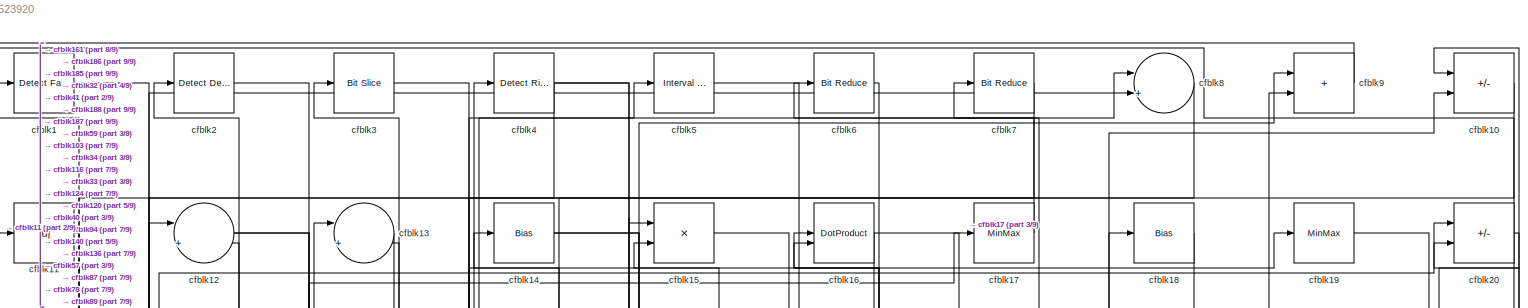
[diagram: root canvas - part 1/9, full width, top band]
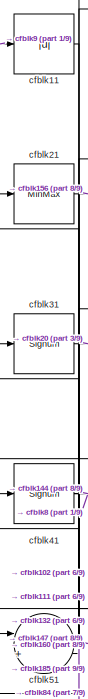
[diagram: root canvas - part 2/9, top left region]
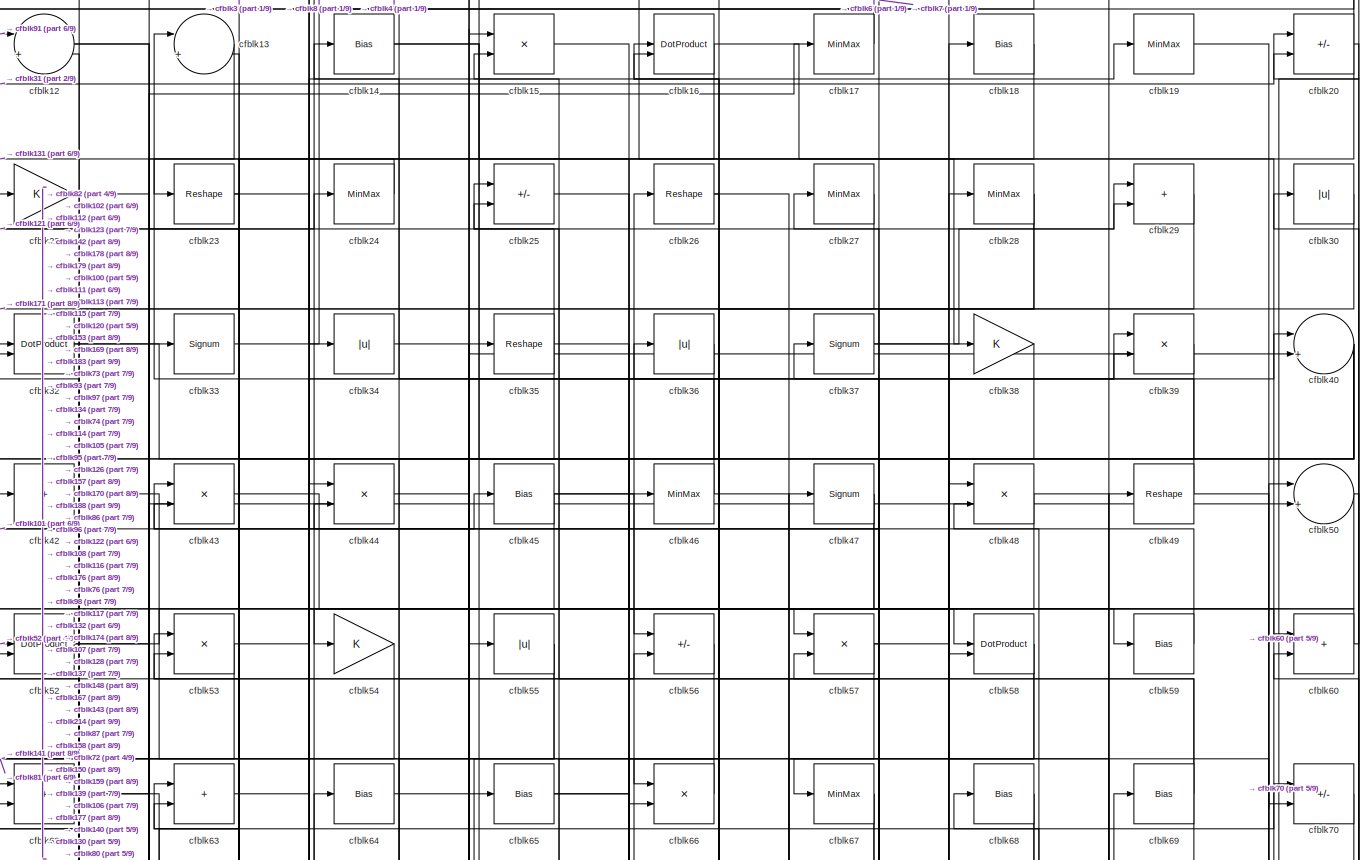
[diagram: root canvas - part 3/9, full width, top band]
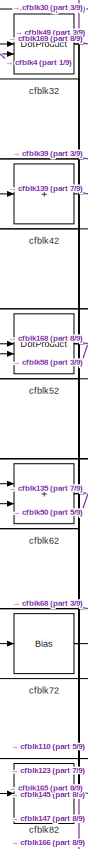
[diagram: root canvas - part 4/9, top left region]
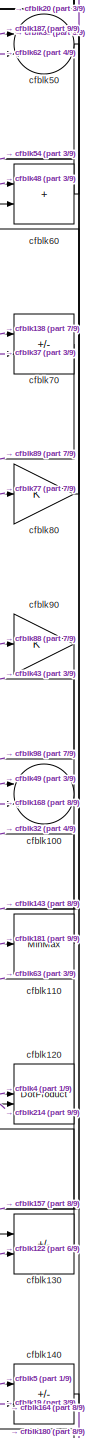
[diagram: root canvas - part 5/9, middle right region]
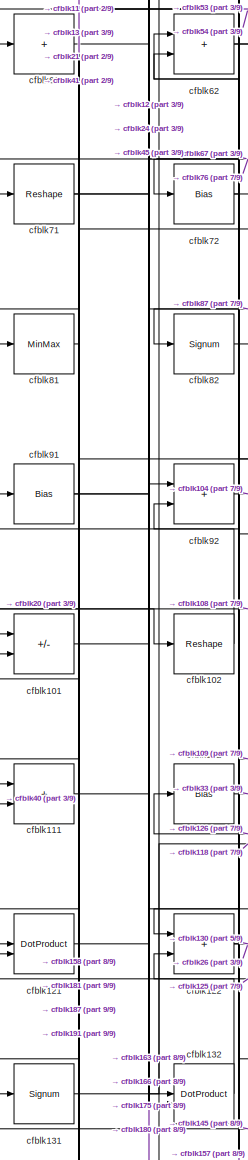
[diagram: root canvas - part 6/9, middle left region]
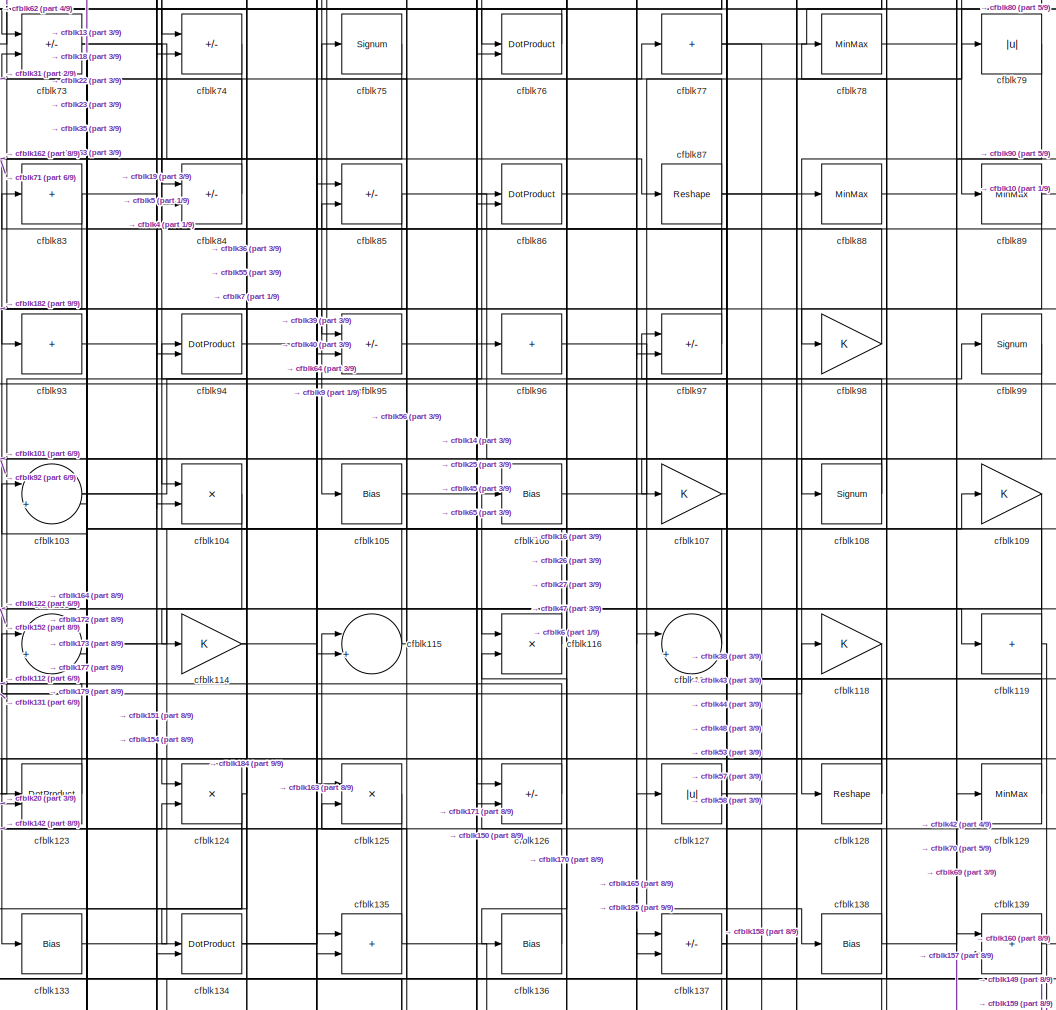
[diagram: root canvas - part 7/9, central region]
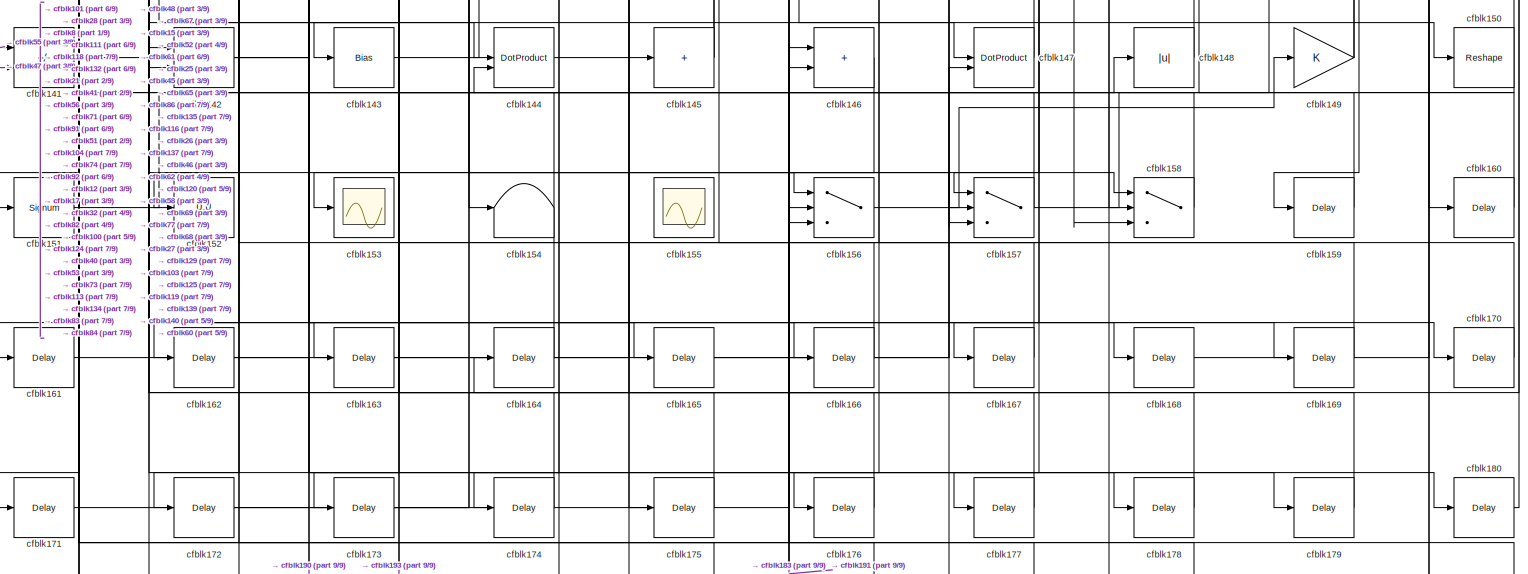
[diagram: root canvas - part 8/9, full width, bottom band]
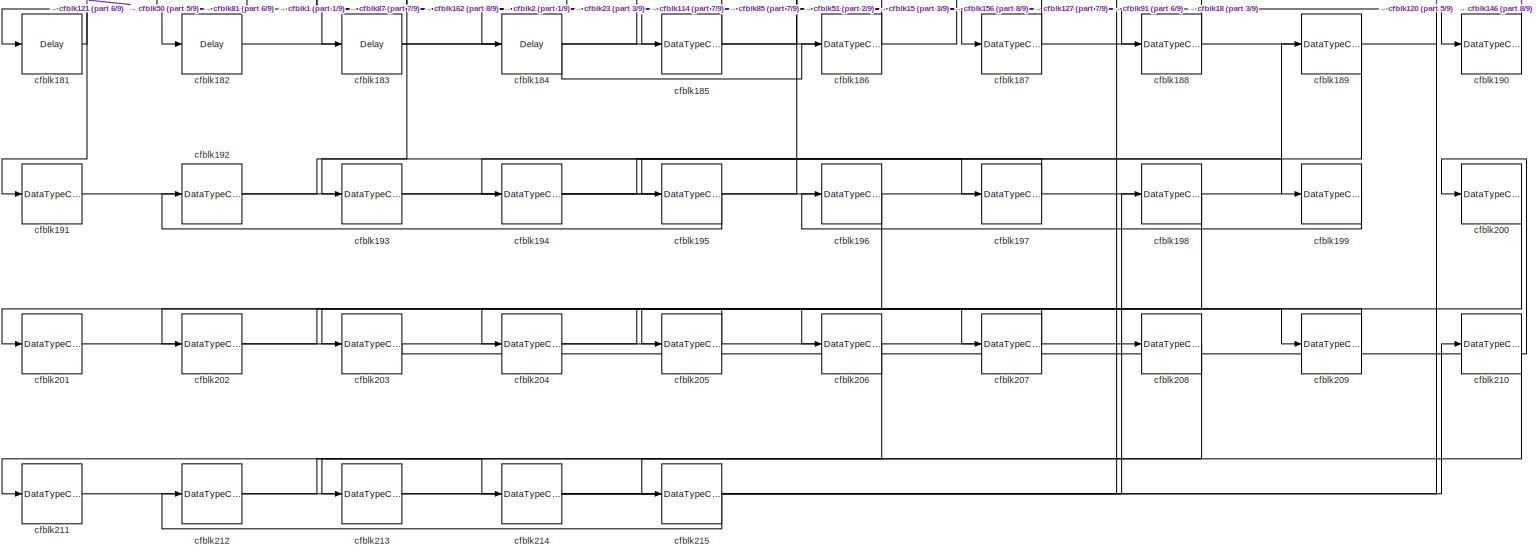
[diagram: root canvas - part 9/9, full width, bottom band]
MODEL slx_3f05ec523920
KIND model
CONFIG AbsTol = auto
CONFIG EnableMultiTasking = off
CONFIG FixedStep = auto
CONFIG MaxStep = auto
CONFIG MinStep = auto
CONFIG RelTol = 1e-3
CONFIG SampleTimeConstraint = Unconstrained
CONFIG SolverName = VariableStepAuto
CONFIG StartTime = 0.0
CONFIG StopTime = 10.0
BLOCK [Reference] cfblk1  REF=hdlsllib/Logic and Bit
Operations/Detect Fall
Negative
  SourceBlock = hdlsllib/Logic and Bit\nOperations/Detect Fall\nNegative
  SourceType = Detect Fall Negative
BLOCK [Sum] cfblk10
  IconShape = rectangular
  Inputs = +-
BLOCK [Sum] cfblk100
  Inputs = |++
BLOCK [Sum] cfblk101
  IconShape = rectangular
  Inputs = +-
BLOCK [Reshape] cfblk102
BLOCK [Sum] cfblk103
  Inputs = |++
BLOCK [Product] cfblk104
  Inputs = */
  RndMeth = Zero
  SaturateOnIntegerOverflow = on
BLOCK [Bias] cfblk105
  Bias = 0.0
  SaturateOnIntegerOverflow = off
BLOCK [Bias] cfblk106
  Bias = 0.0
  SaturateOnIntegerOverflow = off
BLOCK [Gain] cfblk107
BLOCK [Signum] cfblk108
BLOCK [Gain] cfblk109
BLOCK [Abs] cfblk11
  SaturateOnIntegerOverflow = off
BLOCK [MinMax] cfblk110
BLOCK [Sum] cfblk111
  IconShape = rectangular
BLOCK [Bias] cfblk112
  Bias = 0.0
  SaturateOnIntegerOverflow = off
BLOCK [Sum] cfblk113
  Inputs = |++
BLOCK [Gain] cfblk114
BLOCK [Sum] cfblk115
  Inputs = |++
BLOCK [Product] cfblk116
  Inputs = */
  RndMeth = Zero
  SaturateOnIntegerOverflow = on
BLOCK [Sum] cfblk117
  Inputs = |++
BLOCK [Gain] cfblk118
BLOCK [Sum] cfblk119
  IconShape = rectangular
  Inputs = +
BLOCK [Sum] cfblk12
  Inputs = |++
BLOCK [DotProduct] cfblk120
  OutDataTypeStr = Inherit: Inherit via internal rule
BLOCK [DotProduct] cfblk121
  OutDataTypeStr = Inherit: Inherit via internal rule
BLOCK [Sum] cfblk122
  IconShape = rectangular
BLOCK [DotProduct] cfblk123
  OutDataTypeStr = Inherit: Inherit via internal rule
BLOCK [Product] cfblk124
  Inputs = */
  RndMeth = Zero
  SaturateOnIntegerOverflow = on
BLOCK [Product] cfblk125
  Inputs = */
  RndMeth = Zero
  SaturateOnIntegerOverflow = on
BLOCK [Sum] cfblk126
  IconShape = rectangular
  Inputs = +-
BLOCK [Abs] cfblk127
  SaturateOnIntegerOverflow = off
BLOCK [Reshape] cfblk128
BLOCK [MinMax] cfblk129
BLOCK [Sum] cfblk13
  Inputs = |++
BLOCK [Sum] cfblk130
  IconShape = rectangular
  Inputs = +-
BLOCK [Signum] cfblk131
BLOCK [DotProduct] cfblk132
  OutDataTypeStr = Inherit: Inherit via internal rule
BLOCK [Bias] cfblk133
  Bias = 0.0
  SaturateOnIntegerOverflow = off
BLOCK [DotProduct] cfblk134
  OutDataTypeStr = Inherit: Inherit via internal rule
BLOCK [Sum] cfblk135
  IconShape = rectangular
BLOCK [Bias] cfblk136
  Bias = 0.0
  SaturateOnIntegerOverflow = off
BLOCK [Sum] cfblk137
  IconShape = rectangular
  Inputs = +-
BLOCK [Bias] cfblk138
  Bias = 0.0
  SaturateOnIntegerOverflow = off
BLOCK [Sum] cfblk139
  IconShape = rectangular
BLOCK [Bias] cfblk14
  Bias = 0.0
  SaturateOnIntegerOverflow = off
BLOCK [Sum] cfblk140
  IconShape = rectangular
  Inputs = +-
BLOCK [Sum] cfblk141
  IconShape = rectangular
  Inputs = +-
BLOCK [Sum] cfblk142
  IconShape = rectangular
BLOCK [Bias] cfblk143
  Bias = 0.0
  SaturateOnIntegerOverflow = off
BLOCK [DotProduct] cfblk144
  OutDataTypeStr = Inherit: Inherit via internal rule
BLOCK [Sum] cfblk145
  IconShape = rectangular
  Inputs = +
BLOCK [Sum] cfblk146
  IconShape = rectangular
BLOCK [DotProduct] cfblk147
  OutDataTypeStr = Inherit: Inherit via internal rule
BLOCK [Abs] cfblk148
  SaturateOnIntegerOverflow = off
BLOCK [Gain] cfblk149
BLOCK [Product] cfblk15
  Inputs = */
  RndMeth = Zero
  SaturateOnIntegerOverflow = on
BLOCK [Reshape] cfblk150
BLOCK [Signum] cfblk151
BLOCK [Display] cfblk152
  Decimation = 1
BLOCK [Scope] cfblk153
  Floating = off
  NumInputPorts = 1
  ScopeSpecificationString = Simulink.scopes.TimeScopeBlockCfg('CurrentConfiguration', extmgr.ConfigurationSet(extmgr.Configuration('Core','General UI',true),extmgr.Configuration('Core','Source UI',true),extmgr.Configuration('Sources','WiredSimulink',true,'DataLoggingVariableName','ScopeData2','DataLoggingSaveFormat','Array','DataLoggingLimitDataPoints',true,'DataLoggingDecimation','1'),extmgr.Configuration('Visuals','Time Do...<+868ch>
BLOCK [Terminator] cfblk154
BLOCK [Scope] cfblk155
  Floating = on
  NumInputPorts = 1
  ScopeSpecificationString = Simulink.scopes.TimeScopeBlockCfg('CurrentConfiguration', extmgr.ConfigurationSet(extmgr.Configuration('Core','General UI',true,'FigureColor',[0.156862745098039 0.156862745098039 0.156862745098039]),extmgr.Configuration('Core','Source UI',true),extmgr.Configuration('Sources','WiredSimulink',true,'DataLoggingVariableName','ScopeData1','DataLoggingSaveFormat','StructureWithTime','DataLoggingLimitDat...<+2713ch>
BLOCK [Switch] cfblk156
  InputSameDT = off
  SaturateOnIntegerOverflow = off
BLOCK [Switch] cfblk157
  InputSameDT = off
  SaturateOnIntegerOverflow = off
BLOCK [Switch] cfblk158
  InputSameDT = off
  SaturateOnIntegerOverflow = off
BLOCK [Delay] cfblk159
  InputPortMap = u0
  SampleTime = 1
BLOCK [DotProduct] cfblk16
  OutDataTypeStr = Inherit: Inherit via internal rule
BLOCK [Delay] cfblk160
  InputPortMap = u0
  SampleTime = 1
BLOCK [Delay] cfblk161
  InputPortMap = u0
  SampleTime = 1
BLOCK [Delay] cfblk162
  InputPortMap = u0
  SampleTime = 1
BLOCK [Delay] cfblk163
  InputPortMap = u0
  SampleTime = 1
BLOCK [Delay] cfblk164
  InputPortMap = u0
  SampleTime = 1
BLOCK [Delay] cfblk165
  InputPortMap = u0
  SampleTime = 1
BLOCK [Delay] cfblk166
  InputPortMap = u0
  SampleTime = 1
BLOCK [Delay] cfblk167
  InputPortMap = u0
  SampleTime = 1
BLOCK [Delay] cfblk168
  InputPortMap = u0
  SampleTime = 1
BLOCK [Delay] cfblk169
  InputPortMap = u0
  SampleTime = 1
BLOCK [MinMax] cfblk17
BLOCK [Delay] cfblk170
  InputPortMap = u0
  SampleTime = 1
BLOCK [Delay] cfblk171
  InputPortMap = u0
  SampleTime = 1
BLOCK [Delay] cfblk172
  InputPortMap = u0
  SampleTime = 1
BLOCK [Delay] cfblk173
  InputPortMap = u0
  SampleTime = 1
BLOCK [Delay] cfblk174
  InputPortMap = u0
  SampleTime = 1
BLOCK [Delay] cfblk175
  InputPortMap = u0
  SampleTime = 1
BLOCK [Delay] cfblk176
  InputPortMap = u0
  SampleTime = 1
BLOCK [Delay] cfblk177
  InputPortMap = u0
  SampleTime = 1
BLOCK [Delay] cfblk178
  InputPortMap = u0
  SampleTime = 1
BLOCK [Delay] cfblk179
  InputPortMap = u0
  SampleTime = 1
BLOCK [Bias] cfblk18
  Bias = 0.0
  SaturateOnIntegerOverflow = off
BLOCK [Delay] cfblk180
  InputPortMap = u0
  SampleTime = 1
BLOCK [Delay] cfblk181
  InputPortMap = u0
  SampleTime = 1
BLOCK [Delay] cfblk182
  InputPortMap = u0
  SampleTime = 1
BLOCK [Delay] cfblk183
  InputPortMap = u0
  SampleTime = 1
BLOCK [Delay] cfblk184
  InputPortMap = u0
  SampleTime = 1
BLOCK [DataTypeConversion] cfblk185
  RndMeth = Floor
  SaturateOnIntegerOverflow = off
BLOCK [DataTypeConversion] cfblk186
  OutDataTypeStr = uint8
  RndMeth = Floor
  SaturateOnIntegerOverflow = off
BLOCK [DataTypeConversion] cfblk187
  RndMeth = Floor
  SaturateOnIntegerOverflow = off
BLOCK [DataTypeConversion] cfblk188
  OutDataTypeStr = uint8
  RndMeth = Floor
  SaturateOnIntegerOverflow = off
BLOCK [DataTypeConversion] cfblk189
  RndMeth = Floor
  SaturateOnIntegerOverflow = off
BLOCK [MinMax] cfblk19
BLOCK [DataTypeConversion] cfblk190
  OutDataTypeStr = uint8
  RndMeth = Floor
  SaturateOnIntegerOverflow = off
BLOCK [DataTypeConversion] cfblk191
  OutDataTypeStr = uint8
  RndMeth = Floor
  SaturateOnIntegerOverflow = off
BLOCK [DataTypeConversion] cfblk192
  RndMeth = Floor
  SaturateOnIntegerOverflow = off
BLOCK [DataTypeConversion] cfblk193
  OutDataTypeStr = uint8
  RndMeth = Floor
  SaturateOnIntegerOverflow = off
BLOCK [DataTypeConversion] cfblk194
  RndMeth = Floor
  SaturateOnIntegerOverflow = off
BLOCK [DataTypeConversion] cfblk195
  OutDataTypeStr = uint8
  RndMeth = Floor
  SaturateOnIntegerOverflow = off
BLOCK [DataTypeConversion] cfblk196
  RndMeth = Floor
  SaturateOnIntegerOverflow = off
BLOCK [DataTypeConversion] cfblk197
  OutDataTypeStr = uint8
  RndMeth = Floor
  SaturateOnIntegerOverflow = off
BLOCK [DataTypeConversion] cfblk198
  RndMeth = Floor
  SaturateOnIntegerOverflow = off
BLOCK [DataTypeConversion] cfblk199
  OutDataTypeStr = uint8
  RndMeth = Floor
  SaturateOnIntegerOverflow = off
BLOCK [Reference] cfblk2  REF=simulink/Logic and Bit
Operations/Detect
Decrease
  LibrarySourceBlock = hdlsllib/Logic and Bit\nOperations/Detect\nDecrease
  SourceBlock = simulink/Logic and Bit\nOperations/Detect\nDecrease
  SourceType = Detect Decrease
BLOCK [Sum] cfblk20
  IconShape = rectangular
  Inputs = +-
BLOCK [DataTypeConversion] cfblk200
  RndMeth = Floor
  SaturateOnIntegerOverflow = off
BLOCK [DataTypeConversion] cfblk201
  OutDataTypeStr = uint8
  RndMeth = Floor
  SaturateOnIntegerOverflow = off
BLOCK [DataTypeConversion] cfblk202
  RndMeth = Floor
  SaturateOnIntegerOverflow = off
BLOCK [DataTypeConversion] cfblk203
  OutDataTypeStr = uint8
  RndMeth = Floor
  SaturateOnIntegerOverflow = off
BLOCK [DataTypeConversion] cfblk204
  RndMeth = Floor
  SaturateOnIntegerOverflow = off
BLOCK [DataTypeConversion] cfblk205
  OutDataTypeStr = uint8
  RndMeth = Floor
  SaturateOnIntegerOverflow = off
BLOCK [DataTypeConversion] cfblk206
  RndMeth = Floor
  SaturateOnIntegerOverflow = off
BLOCK [DataTypeConversion] cfblk207
  OutDataTypeStr = uint8
  RndMeth = Floor
  SaturateOnIntegerOverflow = off
BLOCK [DataTypeConversion] cfblk208
  RndMeth = Floor
  SaturateOnIntegerOverflow = off
BLOCK [DataTypeConversion] cfblk209
  OutDataTypeStr = uint8
  RndMeth = Floor
  SaturateOnIntegerOverflow = off
BLOCK [MinMax] cfblk21
BLOCK [DataTypeConversion] cfblk210
  RndMeth = Floor
  SaturateOnIntegerOverflow = off
BLOCK [DataTypeConversion] cfblk211
  OutDataTypeStr = uint8
  RndMeth = Floor
  SaturateOnIntegerOverflow = off
BLOCK [DataTypeConversion] cfblk212
  RndMeth = Floor
  SaturateOnIntegerOverflow = off
BLOCK [DataTypeConversion] cfblk213
  OutDataTypeStr = uint8
  RndMeth = Floor
  SaturateOnIntegerOverflow = off
BLOCK [DataTypeConversion] cfblk214
  RndMeth = Floor
  SaturateOnIntegerOverflow = off
BLOCK [DataTypeConversion] cfblk215
  OutDataTypeStr = uint8
  RndMeth = Floor
  SaturateOnIntegerOverflow = off
BLOCK [Gain] cfblk22
BLOCK [Reshape] cfblk23
BLOCK [MinMax] cfblk24
BLOCK [Sum] cfblk25
  IconShape = rectangular
  Inputs = +-
BLOCK [Reshape] cfblk26
BLOCK [MinMax] cfblk27
BLOCK [MinMax] cfblk28
BLOCK [Sum] cfblk29
  IconShape = rectangular
BLOCK [Reference] cfblk3  REF=hdlsllib/Logic and Bit
Operations/Bit Slice
  SourceBlock = hdlsllib/Logic and Bit\nOperations/Bit Slice
  SourceType = Bit Slice
BLOCK [Abs] cfblk30
  SaturateOnIntegerOverflow = off
BLOCK [Signum] cfblk31
BLOCK [DotProduct] cfblk32
  OutDataTypeStr = Inherit: Inherit via internal rule
BLOCK [Signum] cfblk33
BLOCK [Abs] cfblk34
  SaturateOnIntegerOverflow = off
BLOCK [Reshape] cfblk35
BLOCK [Abs] cfblk36
  SaturateOnIntegerOverflow = off
BLOCK [Signum] cfblk37
BLOCK [Gain] cfblk38
BLOCK [Product] cfblk39
  Inputs = */
  RndMeth = Zero
  SaturateOnIntegerOverflow = on
BLOCK [Reference] cfblk4  REF=hdlsllib/Logic and Bit
Operations/Detect Rise
Nonnegative
  SourceBlock = hdlsllib/Logic and Bit\nOperations/Detect Rise\nNonnegative
  SourceType = Detect Rise Nonnegative
BLOCK [Sum] cfblk40
  Inputs = |++
BLOCK [Signum] cfblk41
BLOCK [Sum] cfblk42
  IconShape = rectangular
  Inputs = +
BLOCK [Product] cfblk43
  Inputs = */
  RndMeth = Zero
  SaturateOnIntegerOverflow = on
BLOCK [Product] cfblk44
  Inputs = */
  RndMeth = Zero
  SaturateOnIntegerOverflow = on
BLOCK [Bias] cfblk45
  Bias = 0.0
  SaturateOnIntegerOverflow = off
BLOCK [MinMax] cfblk46
BLOCK [Signum] cfblk47
BLOCK [Product] cfblk48
  Inputs = */
  RndMeth = Zero
  SaturateOnIntegerOverflow = on
BLOCK [Reshape] cfblk49
BLOCK [Reference] cfblk5  REF=hdlsllib/Logic and Bit
Operations/Interval Test
  SourceBlock = hdlsllib/Logic and Bit\nOperations/Interval Test
  SourceType = Interval Test
BLOCK [Sum] cfblk50
  Inputs = |++
BLOCK [Sum] cfblk51
  Inputs = |++
BLOCK [DotProduct] cfblk52
  OutDataTypeStr = Inherit: Inherit via internal rule
BLOCK [Product] cfblk53
  Inputs = */
  RndMeth = Zero
  SaturateOnIntegerOverflow = on
BLOCK [Gain] cfblk54
BLOCK [Abs] cfblk55
  SaturateOnIntegerOverflow = off
BLOCK [Sum] cfblk56
  IconShape = rectangular
  Inputs = +-
BLOCK [Product] cfblk57
  Inputs = */
  RndMeth = Zero
  SaturateOnIntegerOverflow = on
BLOCK [DotProduct] cfblk58
  OutDataTypeStr = Inherit: Inherit via internal rule
BLOCK [Bias] cfblk59
  Bias = 0.0
  SaturateOnIntegerOverflow = off
BLOCK [Reference] cfblk6  REF=hdlsllib/Logic and Bit
Operations/Bit Reduce
  SourceBlock = hdlsllib/Logic and Bit\nOperations/Bit Reduce
  SourceType = Bit Reduce
BLOCK [Sum] cfblk60
  IconShape = rectangular
BLOCK [Sum] cfblk61
  IconShape = rectangular
  Inputs = +
BLOCK [Sum] cfblk62
  IconShape = rectangular
BLOCK [Sum] cfblk63
  IconShape = rectangular
BLOCK [Bias] cfblk64
  Bias = 0.0
  SaturateOnIntegerOverflow = off
BLOCK [Bias] cfblk65
  Bias = 0.0
  SaturateOnIntegerOverflow = off
BLOCK [Product] cfblk66
  Inputs = */
  RndMeth = Zero
  SaturateOnIntegerOverflow = on
BLOCK [MinMax] cfblk67
BLOCK [Bias] cfblk68
  Bias = 0.0
  SaturateOnIntegerOverflow = off
BLOCK [Bias] cfblk69
  Bias = 0.0
  SaturateOnIntegerOverflow = off
BLOCK [Reference] cfblk7  REF=hdlsllib/Logic and Bit
Operations/Bit Reduce
  SourceBlock = hdlsllib/Logic and Bit\nOperations/Bit Reduce
  SourceType = Bit Reduce
BLOCK [Sum] cfblk70
  IconShape = rectangular
  Inputs = +-
BLOCK [Reshape] cfblk71
BLOCK [Bias] cfblk72
  Bias = 0.0
  SaturateOnIntegerOverflow = off
BLOCK [Sum] cfblk73
  IconShape = rectangular
  Inputs = +-
BLOCK [Sum] cfblk74
  IconShape = rectangular
  Inputs = +-
BLOCK [Signum] cfblk75
BLOCK [DotProduct] cfblk76
  OutDataTypeStr = Inherit: Inherit via internal rule
BLOCK [Sum] cfblk77
  IconShape = rectangular
  Inputs = +
BLOCK [MinMax] cfblk78
BLOCK [Abs] cfblk79
  SaturateOnIntegerOverflow = off
BLOCK [Sum] cfblk8
  Inputs = |++
BLOCK [Gain] cfblk80
BLOCK [MinMax] cfblk81
BLOCK [Signum] cfblk82
BLOCK [Sum] cfblk83
  IconShape = rectangular
  Inputs = +
BLOCK [Sum] cfblk84
  IconShape = rectangular
  Inputs = +-
BLOCK [Sum] cfblk85
  IconShape = rectangular
  Inputs = +-
BLOCK [DotProduct] cfblk86
  OutDataTypeStr = Inherit: Inherit via internal rule
BLOCK [Reshape] cfblk87
BLOCK [MinMax] cfblk88
BLOCK [MinMax] cfblk89
BLOCK [Sum] cfblk9
  IconShape = rectangular
BLOCK [Gain] cfblk90
BLOCK [Bias] cfblk91
  Bias = 0.0
  SaturateOnIntegerOverflow = off
BLOCK [Sum] cfblk92
  IconShape = rectangular
BLOCK [Sum] cfblk93
  IconShape = rectangular
  Inputs = +
BLOCK [DotProduct] cfblk94
  OutDataTypeStr = Inherit: Inherit via internal rule
BLOCK [Sum] cfblk95
  IconShape = rectangular
  Inputs = +-
BLOCK [Sum] cfblk96
  IconShape = rectangular
  Inputs = +
BLOCK [Sum] cfblk97
  IconShape = rectangular
  Inputs = +-
BLOCK [Gain] cfblk98
BLOCK [Signum] cfblk99
NET cfblk100:1 -> cfblk143:1, cfblk43:2
LINE cfblk101:1 -> cfblk45:1
LINE cfblk102:1 -> cfblk21:1
NET cfblk103:1 -> cfblk5:1, cfblk99:1
LINE cfblk104:1 -> cfblk152:1
LINE cfblk105:1 -> cfblk77:1
LINE cfblk106:1 -> cfblk69:1
LINE cfblk107:1 -> cfblk43:1
NET cfblk108:1 -> cfblk101:1, cfblk16:2
LINE cfblk109:1 -> cfblk122:1
LINE cfblk10:1 -> cfblk94:2
LINE cfblk110:1 -> cfblk32:1
LINE cfblk111:1 -> cfblk166:1
LINE cfblk112:1 -> cfblk33:1
NET cfblk113:1 -> cfblk119:1, cfblk154:1
NET cfblk114:1 -> cfblk184:1, cfblk39:1
NET cfblk115:1 -> cfblk22:1, cfblk75:1
LINE cfblk116:1 -> cfblk4:1
LINE cfblk117:1 -> cfblk63:1
LINE cfblk118:1 -> cfblk142:2
NET cfblk119:1 -> cfblk123:1, cfblk159:1, cfblk85:2
LINE cfblk11:1 -> cfblk111:1
NET cfblk120:1 -> cfblk157:1, cfblk63:2
LINE cfblk121:1 -> cfblk24:1
NET cfblk122:1 -> cfblk130:2, cfblk26:1
LINE cfblk123:1 -> cfblk42:1
NET cfblk124:1 -> cfblk172:1, cfblk173:1, cfblk94:1
LINE cfblk125:1 -> cfblk122:2
LINE cfblk126:1 -> cfblk112:1
LINE cfblk127:1 -> cfblk79:1
NET cfblk128:1 -> cfblk44:2, cfblk53:1, cfblk83:1
LINE cfblk129:1 -> cfblk78:1
NET cfblk12:1 -> cfblk178:1, cfblk179:1
LINE cfblk130:1 -> cfblk37:1
LINE cfblk131:1 -> cfblk118:1
LINE cfblk132:1 -> cfblk41:1
LINE cfblk133:1 -> cfblk109:1
NET cfblk134:1 -> cfblk115:2, cfblk35:1
NET cfblk135:1 -> cfblk115:1, cfblk150:1
LINE cfblk136:1 -> cfblk106:1
NET cfblk137:1 -> cfblk57:2, cfblk88:1
NET cfblk138:1 -> cfblk70:1, cfblk97:1
LINE cfblk139:1 -> cfblk160:1
LINE cfblk13:1 -> cfblk131:1
LINE cfblk140:1 -> cfblk164:1
LINE cfblk141:1 -> cfblk56:2
NET cfblk142:1 -> cfblk124:2, cfblk17:1
LINE cfblk143:1 -> cfblk48:1
LINE cfblk144:1 -> cfblk175:1
NET cfblk145:1 -> cfblk52:2, cfblk61:1
LINE cfblk146:1 -> cfblk193:1
LINE cfblk147:1 -> cfblk62:1
LINE cfblk148:1 -> cfblk27:1
NET cfblk149:1 -> cfblk103:1, cfblk125:2
NET cfblk14:1 -> cfblk126:2, cfblk46:1
NET cfblk150:1 -> cfblk144:2, cfblk68:1
LINE cfblk151:1 -> cfblk148:1
LINE cfblk156:1 -> cfblk149:1
NET cfblk157:1 -> cfblk129:1, cfblk92:2
LINE cfblk158:1 -> cfblk101:2
LINE cfblk159:1 -> cfblk48:2
LINE cfblk15:1 -> cfblk188:1
LINE cfblk160:1 -> cfblk51:1
LINE cfblk161:1 -> cfblk147:2
LINE cfblk162:1 -> cfblk190:1
LINE cfblk163:1 -> cfblk135:2
LINE cfblk164:1 -> cfblk113:1
LINE cfblk165:1 -> cfblk137:1
LINE cfblk166:1 -> cfblk62:2
LINE cfblk167:1 -> cfblk25:2
LINE cfblk168:1 -> cfblk100:2
LINE cfblk169:1 -> cfblk53:2
NET cfblk16:1 -> cfblk38:1, cfblk73:1
LINE cfblk170:1 -> cfblk116:2
LINE cfblk171:1 -> cfblk86:2
LINE cfblk172:1 -> cfblk84:2
LINE cfblk173:1 -> cfblk134:2
LINE cfblk174:1 -> cfblk142:1
LINE cfblk175:1 -> cfblk132:1
LINE cfblk176:1 -> cfblk156:2
LINE cfblk177:1 -> cfblk103:2
LINE cfblk178:1 -> cfblk15:1
LINE cfblk179:1 -> cfblk73:2
LINE cfblk17:1 -> cfblk6:1
LINE cfblk180:1 -> cfblk60:2
LINE cfblk181:1 -> cfblk121:2
LINE cfblk182:1 -> cfblk85:1
LINE cfblk183:1 -> cfblk156:3
LINE cfblk184:1 -> cfblk186:1
NET cfblk185:1 -> cfblk127:1, cfblk51:2
LINE cfblk186:1 -> cfblk1:1
NET cfblk187:1 -> cfblk50:1, cfblk91:1
LINE cfblk188:1 -> cfblk2:1
LINE cfblk189:1 -> cfblk195:1
LINE cfblk18:1 -> cfblk113:2
LINE cfblk190:1 -> cfblk146:1
LINE cfblk191:1 -> cfblk146:2
LINE cfblk192:1 -> cfblk197:1
LINE cfblk193:1 -> cfblk189:1
LINE cfblk194:1 -> cfblk199:1
LINE cfblk195:1 -> cfblk192:1
LINE cfblk196:1 -> cfblk201:1
LINE cfblk197:1 -> cfblk194:1
LINE cfblk198:1 -> cfblk203:1
LINE cfblk199:1 -> cfblk196:1
LINE cfblk19:1 -> cfblk140:2
LINE cfblk1:1 -> cfblk185:1
LINE cfblk200:1 -> cfblk205:1
LINE cfblk201:1 -> cfblk198:1
LINE cfblk202:1 -> cfblk207:1
LINE cfblk203:1 -> cfblk200:1
LINE cfblk204:1 -> cfblk209:1
LINE cfblk205:1 -> cfblk202:1
LINE cfblk206:1 -> cfblk211:1
LINE cfblk207:1 -> cfblk204:1
LINE cfblk208:1 -> cfblk213:1
LINE cfblk209:1 -> cfblk206:1
NET cfblk20:1 -> cfblk102:1, cfblk123:2, cfblk130:1
LINE cfblk210:1 -> cfblk215:1
LINE cfblk211:1 -> cfblk208:1
LINE cfblk212:1 -> cfblk214:1
LINE cfblk213:1 -> cfblk210:1
NET cfblk214:1 -> cfblk120:2, cfblk18:1
LINE cfblk215:1 -> cfblk212:1
LINE cfblk21:1 -> cfblk156:1
LINE cfblk22:1 -> cfblk29:2
NET cfblk23:1 -> cfblk183:1, cfblk76:2
LINE cfblk24:1 -> cfblk23:1
LINE cfblk25:1 -> cfblk86:1
NET cfblk26:1 -> cfblk117:1, cfblk176:1
LINE cfblk27:1 -> cfblk76:1
NET cfblk28:1 -> cfblk171:1, cfblk66:1
LINE cfblk29:1 -> cfblk67:1
LINE cfblk2:1 -> cfblk187:1
LINE cfblk30:1 -> cfblk82:1
LINE cfblk31:1 -> cfblk20:1
NET cfblk32:1 -> cfblk145:1, cfblk169:1
LINE cfblk33:1 -> cfblk8:1
LINE cfblk34:1 -> cfblk55:1
NET cfblk35:1 -> cfblk25:1, cfblk58:2, cfblk93:1
LINE cfblk36:1 -> cfblk134:1
NET cfblk37:1 -> cfblk29:1, cfblk70:2
LINE cfblk38:1 -> cfblk117:2
LINE cfblk39:1 -> cfblk52:1
LINE cfblk3:1 -> cfblk34:1
NET cfblk40:1 -> cfblk111:2, cfblk153:1, cfblk57:1, cfblk95:2
NET cfblk41:1 -> cfblk144:1, cfblk8:2
LINE cfblk42:1 -> cfblk139:2
LINE cfblk43:1 -> cfblk139:1
LINE cfblk44:1 -> cfblk59:1
NET cfblk45:1 -> cfblk157:2, cfblk56:1, cfblk74:2
NET cfblk46:1 -> cfblk13:1, cfblk158:1
NET cfblk47:1 -> cfblk116:1, cfblk141:2
NET cfblk48:1 -> cfblk107:1, cfblk60:1
NET cfblk49:1 -> cfblk100:1, cfblk14:1
NET cfblk4:1 -> cfblk120:1, cfblk32:2, cfblk40:2
NET cfblk50:1 -> cfblk110:1, cfblk181:1
LINE cfblk51:1 -> cfblk147:1
NET cfblk52:1 -> cfblk168:1, cfblk58:1
NET cfblk53:1 -> cfblk121:1, cfblk40:1
LINE cfblk54:1 -> cfblk81:1
NET cfblk55:1 -> cfblk141:1, cfblk74:1
LINE cfblk56:1 -> cfblk95:1
NET cfblk57:1 -> cfblk28:1, cfblk66:2, cfblk7:1
NET cfblk58:1 -> cfblk167:1, cfblk97:2
LINE cfblk59:1 -> cfblk3:1
LINE cfblk5:1 -> cfblk140:1
NET cfblk60:1 -> cfblk20:2, cfblk54:1
LINE cfblk61:1 -> cfblk92:1
NET cfblk62:1 -> cfblk135:1, cfblk50:2
LINE cfblk63:1 -> cfblk44:1
LINE cfblk64:1 -> cfblk105:1
NET cfblk65:1 -> cfblk170:1, cfblk96:1
LINE cfblk66:1 -> cfblk65:1
NET cfblk67:1 -> cfblk132:2, cfblk174:1
NET cfblk68:1 -> cfblk158:2, cfblk72:1
NET cfblk69:1 -> cfblk15:2, cfblk177:1, cfblk36:1
LINE cfblk6:1 -> cfblk136:1
LINE cfblk70:1 -> cfblk89:1
NET cfblk71:1 -> cfblk163:1, cfblk87:1
NET cfblk72:1 -> cfblk12:2, cfblk49:1
NET cfblk73:1 -> cfblk125:1, cfblk84:1
LINE cfblk74:1 -> cfblk162:1
LINE cfblk75:1 -> cfblk133:1
LINE cfblk76:1 -> cfblk71:1
NET cfblk77:1 -> cfblk158:3, cfblk80:1
LINE cfblk78:1 -> cfblk9:2
LINE cfblk79:1 -> cfblk108:1
LINE cfblk7:1 -> cfblk124:1
LINE cfblk80:1 -> cfblk30:1
LINE cfblk81:1 -> cfblk191:1
LINE cfblk82:1 -> cfblk165:1
NET cfblk83:1 -> cfblk151:1, cfblk157:3
LINE cfblk84:1 -> cfblk31:1
NET cfblk85:1 -> cfblk114:1, cfblk137:2
LINE cfblk86:1 -> cfblk47:1
NET cfblk87:1 -> cfblk10:2, cfblk13:2, cfblk182:1, cfblk39:2
LINE cfblk88:1 -> cfblk90:1
NET cfblk89:1 -> cfblk104:2, cfblk10:1
LINE cfblk8:1 -> cfblk161:1
LINE cfblk90:1 -> cfblk98:1
NET cfblk91:1 -> cfblk12:1, cfblk180:1
LINE cfblk92:1 -> cfblk104:1
LINE cfblk93:1 -> cfblk19:1
LINE cfblk94:1 -> cfblk9:1
LINE cfblk95:1 -> cfblk126:1
LINE cfblk96:1 -> cfblk138:1
LINE cfblk97:1 -> cfblk64:1
LINE cfblk98:1 -> cfblk16:1
LINE cfblk99:1 -> cfblk128:1
LINE cfblk9:1 -> cfblk11:1
note: NET lines group one-source signal fan-out (src -> all destinations, sorted); 1:1 wires keep LINE
